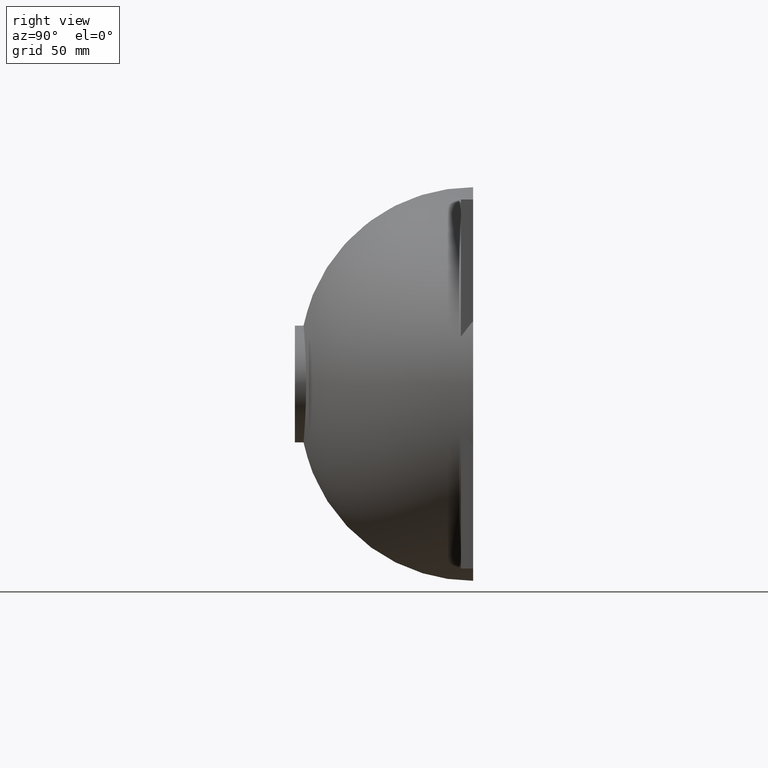
[diagram: clean part render]
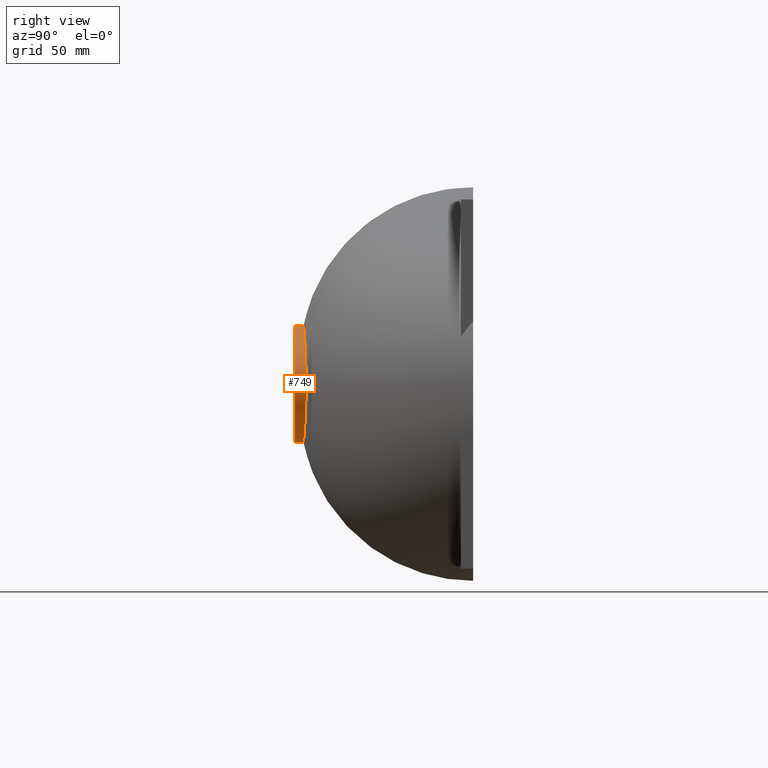
[diagram: same view with one face highlighted and labeled with its STEP entity id]
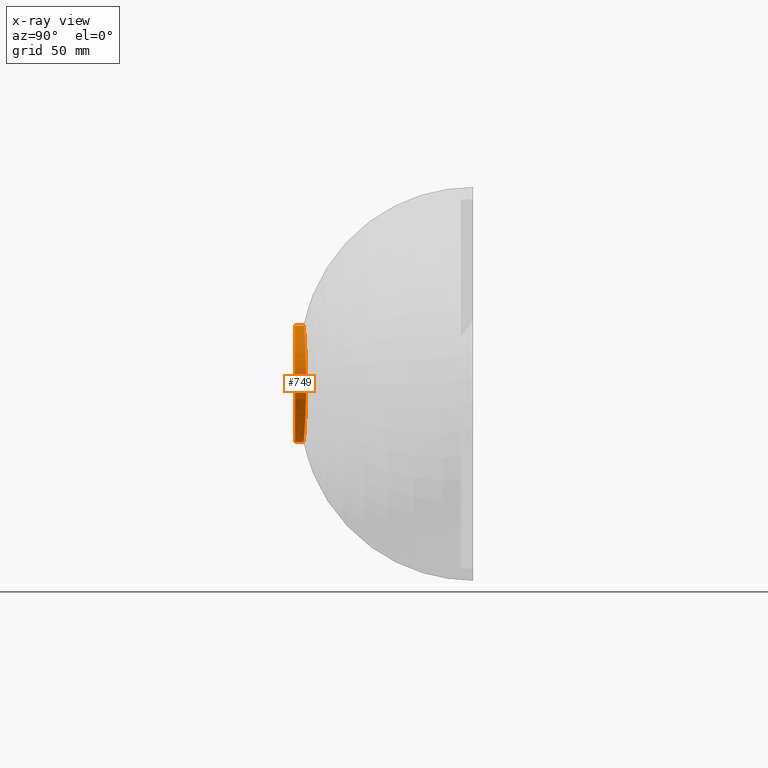
[diagram: x-ray of the same camera — body ghosted, the highlighted face saturated]
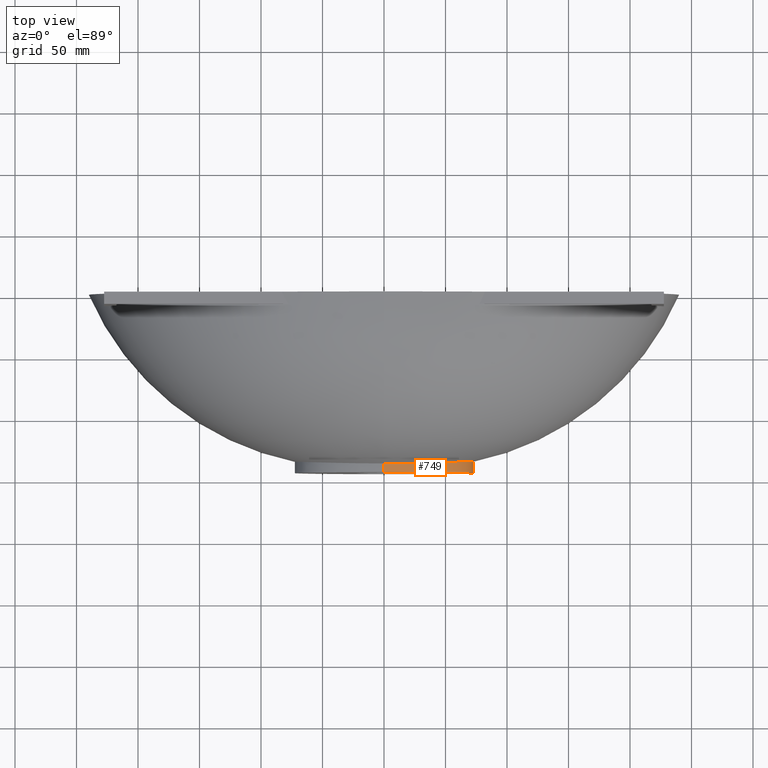
[diagram: same view with one face highlighted and labeled with its STEP entity id]
A machine part, right view. The second image highlights one B-rep face of the part: STEP entity #749.
The next image is the same camera in x-ray: the body ghosted, the highlighted face saturated — about 0% of this face is hidden behind the body in this view.
A second angle (top view) of the same face is appended — the face is thin or edge-on in the first view.
In plain terms, the highlighted face is a freeform B-spline surface patch.
Its self-contained STEP definition (entity closure, byte-faithful):
#4 = CARTESIAN_POINT ( 'NONE',  ( -73.39954372594070300, -140.3770763210705500, -7.632783294297951200E-014 ) ) ;
#6 = CARTESIAN_POINT ( 'NONE',  ( 70.71646170037875800, -135.9296180062940500, 12.54573128902395500 ) ) ;
#15 = CARTESIAN_POINT ( 'NONE',  ( 63.29308789441712000, -136.3390371893264300, -24.08068631025928100 ) ) ;
#23 = CARTESIAN_POINT ( 'NONE',  ( 51.48271120768069400, -144.9999999999999700, 33.88317743634836200 ) ) ;
#29 = CARTESIAN_POINT ( 'NONE',  ( 0.9467311187589879700, -141.4591127333577600, 47.50000000000009900 ) ) ;
#31 = B_SPLINE_CURVE_WITH_KNOTS ( 'NONE', 3,
 ( #2628, #146, #1293, #2300, #930, #2210, #1587 ),
 .UNSPECIFIED., .F., .F.,
 ( 4, 1, 1, 1, 4 ),
 ( 0.1421692620891572600, 0.1501776100742818200, 0.1581859580594063800, 0.1661943060445309500, 0.1742026540296555400 ),
 .UNSPECIFIED. ) ;
#51 = CARTESIAN_POINT ( 'NONE',  ( 73.40731830207148800, -144.9999999999998900, 7.285838599102589800E-014 ) ) ;
#73 = CARTESIAN_POINT ( 'NONE',  ( -2.087443542858357600E-010, -145.0000000000000300, -47.50000000000002100 ) ) ;
#74 = CARTESIAN_POINT ( 'NONE',  ( -36.45796759432776200, -139.2938720306895000, 41.53167056166675800 ) ) ;
#85 = CARTESIAN_POINT ( 'NONE',  ( -51.51907901183381000, -142.9663583204456100, -33.90611497006282300 ) ) ;
#87 = CARTESIAN_POINT ( 'NONE',  ( 70.69313797199795600, -142.7324045015733700, 12.50389735218298300 ) ) ;
#88 = CARTESIAN_POINT ( 'NONE',  ( 2.204686036202594000, -144.4097059010894400, 47.48248859226948300 ) ) ;
#91 = CARTESIAN_POINT ( 'NONE',  ( -6.072226055309215600E-011, -141.4883569607169700, -48.07953059758087000 ) ) ;
#96 = VERTEX_POINT ( 'NONE', #73 ) ;
#103 = CARTESIAN_POINT ( 'NONE',  ( -5.551115123125782700E-014, -137.9182254667157400, 47.50000000000003600 ) ) ;
#107 = CARTESIAN_POINT ( 'NONE',  ( -4.857225732735059900E-014, -143.2295563666789300, 47.49999999999997200 ) ) ;
#146 = CARTESIAN_POINT ( 'NONE',  ( -2.198627850836425400E-010, -144.4098521222263400, -47.50000000000000700 ) ) ;
#189 = B_SPLINE_CURVE_WITH_KNOTS ( 'NONE', 3,
 ( #2166, #2022, #3018, #2950, #2439, #652, #2576, #1351, #3033, #1553, #23, #2394, #1523, #2733, #1098, #1741, #2506 ),
 .UNSPECIFIED., .F., .F.,
 ( 4, 1, 1, 1, 1, 1, 1, 1, 1, 1, 1, 1, 1, 1, 4 ),
 ( 0.5000000000000294200, 0.5416666666657916600, 0.5833333333325377800, 0.6249999999992841300, 0.6666666666660303600, 0.7083333333327763700, 0.7499999999995226000, 0.7916666666662688400, 0.8333333333330151800, 0.8749999999997613000, 0.9166666666665075300, 0.9583333333332537700, 0.9916666666666508200, 0.9937499999999881400, 1.000000000000000000 ),
 .UNSPECIFIED. ) ;
#202 = CARTESIAN_POINT ( 'NONE',  ( -73.39306491250100400, -136.5246399219622000, -5.551115123125782700E-014 ) ) ;
#204 = CARTESIAN_POINT ( 'NONE',  ( 8.533377765990390900, -137.8965847384696700, 47.28353109660998400 ) ) ;
#231 = EDGE_CURVE ( 'NONE', #1082, #1938, #1265, .T. ) ;
#233 = CARTESIAN_POINT ( 'NONE',  ( -8.513371124650657200, -141.4482923692350500, 47.28172208801964900 ) ) ;
#234 = CARTESIAN_POINT ( 'NONE',  ( 63.18233500956482400, -144.9999999999999400, -24.00553325784789700 ) ) ;
#241 = CARTESIAN_POINT ( 'NONE',  ( -0.9456117139557893600, -143.2295563666789600, 47.49999999999995700 ) ) ;
#250 = CARTESIAN_POINT ( 'NONE',  ( -8.533377765990168800, -137.8965847384702400, 47.28353109660992000 ) ) ;
#254 = CARTESIAN_POINT ( 'NONE',  ( -63.19156441666257300, -144.2782530991103200, 24.01179601221269900 ) ) ;
#269 = CARTESIAN_POINT ( 'NONE',  ( 2.206427332563321000, -143.2291177032685100, 47.48253878819069500 ) ) ;
#293 = CARTESIAN_POINT ( 'NONE',  ( 20.14667061445589300, -137.7739539450767000, 46.03087510159115700 ) ) ;
#298 = ORIENTED_EDGE ( 'NONE', *, *, #231, .F. ) ;
#336 = ORIENTED_EDGE ( 'NONE', *, *, #411, .T. ) ;
#340 = CARTESIAN_POINT ( 'NONE',  ( -8.530043325766929000, -138.4885360102644300, 47.28322959517819200 ) ) ;
#398 = CARTESIAN_POINT ( 'NONE',  ( -0.9478505235624434800, -139.6886691000368000, 47.49999999999990100 ) ) ;
#408 = CARTESIAN_POINT ( 'NONE',  ( -51.61605982271164100, -137.5433138416397900, 33.96728172664516900 ) ) ;
#411 = EDGE_CURVE ( 'NONE', #96, #441, #31, .T. ) ;
#441 = VERTEX_POINT ( 'NONE', #2267 ) ;
#446 = CARTESIAN_POINT ( 'NONE',  ( -2.214263166186683400, -137.9164708130742600, 47.48276466983633500 ) ) ;
#451 = CARTESIAN_POINT ( 'NONE',  ( -36.37660311407527300, -144.3659857811877000, 41.48429958840375100 ) ) ;
#465 = CARTESIAN_POINT ( 'NONE',  ( -63.21002323080296700, -142.8347592973311500, 24.02432152094836200 ) ) ;
#488 = CARTESIAN_POINT ( 'NONE',  ( 0.9485967934311987400, -138.5083733444894300, 47.50000000000001400 ) ) ;
#490 = CARTESIAN_POINT ( 'NONE',  ( -4.857225732735059900E-014, -144.4098521222262300, 47.49999999999998600 ) ) ;
#501 = CARTESIAN_POINT ( 'NONE',  ( 20.14667061445589300, -137.7739539450767000, 46.03087510159115700 ) ) ;
#516 = CARTESIAN_POINT ( 'NONE',  ( -70.70091254810745300, -140.4648090031483900, 12.51784199779583100 ) ) ;
#519 = CARTESIAN_POINT ( 'NONE',  ( 73.39176914981484900, -135.7541526421403000, 1.387778780781445700E-014 ) ) ;
#529 = CARTESIAN_POINT ( 'NONE',  ( -73.40343101400465300, -142.6885381605351000, -9.020562075079396900E-014 ) ) ;
#530 = CARTESIAN_POINT ( 'NONE',  ( -70.68795492122586700, -144.2441348338580000, 12.49460092177255500 ) ) ;
#559 = CARTESIAN_POINT ( 'NONE',  ( 8.533377765990390900, -137.8965847384696700, 47.28353109660998400 ) ) ;
#581 = CARTESIAN_POINT ( 'NONE',  ( -5.551115123125782700E-014, -139.6886691000367800, 47.49999999999991500 ) ) ;
#602 = CARTESIAN_POINT ( 'NONE',  ( 20.13902739167764000, -138.3761244496536700, 46.02891869259742200 ) ) ;
#608 = CARTESIAN_POINT ( 'NONE',  ( 36.42745591424295500, -141.1959146871251400, 41.51390644669411500 ) ) ;
#625 = CARTESIAN_POINT ( 'NONE',  ( 63.29308789441712000, -136.3390371893264300, -24.08068631025928100 ) ) ;
#640 = CARTESIAN_POINT ( 'NONE',  ( 0.9489699283656422000, -137.9182254667157100, 47.50000000000004300 ) ) ;
#652 = CARTESIAN_POINT ( 'NONE',  ( 63.18233500956482400, -144.9999999999999400, -24.00553325784789700 ) ) ;
#661 = CARTESIAN_POINT ( 'NONE',  ( -20.06259516389136300, -144.3978294954231400, 46.00935460265935000 ) ) ;
#685 = CARTESIAN_POINT ( 'NONE',  ( -63.28385848739952000, -137.0607840902095500, -24.07442355589091000 ) ) ;
#690 = CARTESIAN_POINT ( 'NONE',  ( -36.47830871439092000, -138.0258435930650500, 41.54351330498258900 ) ) ;
#694 = CARTESIAN_POINT ( 'NONE',  ( -18.93462237523857500, -141.4006242786392100, -46.34093880483933200 ) ) ;
#703 = CARTESIAN_POINT ( 'NONE',  ( -0.9485967934313305200, -138.5083733444895100, 47.50000000000000700 ) ) ;
#707 = CARTESIAN_POINT ( 'NONE',  ( -51.59181462002982200, -138.8990749613365900, -33.95199003749932100 ) ) ;
#713 = CARTESIAN_POINT ( 'NONE',  ( -1.954352958374126900E-010, -137.9182254667158000, -47.49999999999994300 ) ) ;
#718 = CARTESIAN_POINT ( 'NONE',  ( -51.61605982276190500, -137.5433138416338500, -33.96728172664483500 ) ) ;
#733 = CARTESIAN_POINT ( 'NONE',  ( 18.88984618297710600, -145.0000000000000000, -46.33089962058677000 ) ) ;
#742 = CARTESIAN_POINT ( 'NONE',  ( 70.70868712425188100, -138.1972135047202500, 12.53178664341028700 ) ) ;
#743 = CARTESIAN_POINT ( 'NONE',  ( 2.209039277104405000, -141.4582354065369700, 47.48261408207268600 ) ) ;
#749 = ADVANCED_FACE ( 'NONE', ( #2463 ), #1869, .T. ) ;
#752 = CARTESIAN_POINT ( 'NONE',  ( 63.21002323077797100, -142.8347592973315200, -24.02432152095075700 ) ) ;
#775 = CARTESIAN_POINT ( 'NONE',  ( 0.9478505235623185800, -139.6886691000367500, 47.49999999999992200 ) ) ;
#798 = CARTESIAN_POINT ( 'NONE',  ( 36.42745591416584700, -141.1959146871283800, -41.51390644669531600 ) ) ;
#800 = CARTESIAN_POINT ( 'NONE',  ( 20.07788160945139900, -143.1934884862692200, 46.01326742064758000 ) ) ;
#809 = CARTESIAN_POINT ( 'NONE',  ( -4.680977827575816300E-011, -137.9767139214340500, -48.07451100545617400 ) ) ;
#814 = CARTESIAN_POINT ( 'NONE',  ( 36.45796759426822600, -139.2938720306924300, -41.53167056166815000 ) ) ;
#821 = CARTESIAN_POINT ( 'NONE',  ( -20.10081127778333300, -141.3869769725390000, 46.01913664762838600 ) ) ;
#826 = CARTESIAN_POINT ( 'NONE',  ( -36.48847927442247400, -137.3918293742527500, 41.54943467664048000 ) ) ;
#832 = CARTESIAN_POINT ( 'NONE',  ( -18.88984618311877000, -145.0000000000000300, -46.33089962059092700 ) ) ;
#836 = CARTESIAN_POINT ( 'NONE',  ( -6.768197113871110600E-011, -143.2441784803585800, -48.08204039364329000 ) ) ;
#842 = CARTESIAN_POINT ( 'NONE',  ( 36.48847927443004100, -137.3918293742502500, 41.54943467664070100 ) ) ;
#863 = CARTESIAN_POINT ( 'NONE',  ( 70.68536339587095100, -144.9999999999999400, 12.48995270656932300 ) ) ;
#875 = CARTESIAN_POINT ( 'NONE',  ( 8.530043325767163500, -138.4885360102638900, 47.28322959517826300 ) ) ;
#876 = CARTESIAN_POINT ( 'NONE',  ( -51.49483380910173500, -144.3221194401485000, -33.89082328091728200 ) ) ;
#895 = CARTESIAN_POINT ( 'NONE',  ( -51.48271120773571900, -145.0000000000000000, -33.88317743634453900 ) ) ;
#905 = CARTESIAN_POINT ( 'NONE',  ( -4.857225732735059900E-014, -144.4098521222262300, 47.49999999999998600 ) ) ;
#912 = CARTESIAN_POINT ( 'NONE',  ( -18.97193586867175300, -138.4011445108387500, -46.34930479171308800 ) ) ;
#924 = CARTESIAN_POINT ( 'NONE',  ( -8.503367803980893300, -143.2241461846175500, 47.28081758372436400 ) ) ;
#929 = CARTESIAN_POINT ( 'NONE',  ( -63.29308789443452100, -136.3390371893246100, 24.08068631025891200 ) ) ;
#930 = CARTESIAN_POINT ( 'NONE',  ( -2.020886647417318000E-010, -139.6886691000368300, -47.50000000000002100 ) ) ;
#941 = CARTESIAN_POINT ( 'NONE',  ( -36.45796759439596000, -139.2938720306846400, -41.53167056166604000 ) ) ;
#950 = CARTESIAN_POINT ( 'NONE',  ( -36.42745591431010900, -141.1959146871231800, -41.51390644669185500 ) ) ;
#951 = CARTESIAN_POINT ( 'NONE',  ( 51.55544681588703800, -140.9327166408929200, 33.92905250378325400 ) ) ;
#964 = CARTESIAN_POINT ( 'NONE',  ( -73.39565643787682300, -138.0656144816051700, -5.724587470723463400E-014 ) ) ;
#973 = CARTESIAN_POINT ( 'NONE',  ( 18.89730888166814200, -144.4001040464400200, -46.33257281796180400 ) ) ;
#1005 = CARTESIAN_POINT ( 'NONE',  ( -36.48847927448184700, -137.3918293742463000, -41.54943467664013900 ) ) ;
#1011 = CARTESIAN_POINT ( 'NONE',  ( -51.49483380902772500, -144.3221194401490400, 33.89082328091900100 ) ) ;
#1014 = CARTESIAN_POINT ( 'NONE',  ( 51.49483380904842300, -144.3221194401487500, 33.89082328092083400 ) ) ;
#1060 = CARTESIAN_POINT ( 'NONE',  ( -8.493364483311131300, -144.9999999999999400, 47.27991307942922800 ) ) ;
#1081 = CARTESIAN_POINT ( 'NONE',  ( -2.213392518006319900, -138.5067649119847600, 47.48273957187569700 ) ) ;
#1082 = VERTEX_POINT ( 'NONE', #3003 ) ;
#1098 = CARTESIAN_POINT ( 'NONE',  ( 2.203815388022230400, -144.9999999999999700, 47.48246349430888100 ) ) ;
#1102 = CARTESIAN_POINT ( 'NONE',  ( -63.28385848736435500, -137.0607840902142100, 24.07442355589106600 ) ) ;
#1123 = CARTESIAN_POINT ( 'NONE',  ( -36.37660311416704700, -144.3659857811871600, -41.48429958840162600 ) ) ;
#1134 = CARTESIAN_POINT ( 'NONE',  ( -0.9489699283657671000, -137.9182254667157700, 47.50000000000002800 ) ) ;
#1154 = CARTESIAN_POINT ( 'NONE',  ( -70.71387017498914000, -136.6854831724383200, 12.54108307381908500 ) ) ;
#1168 = CARTESIAN_POINT ( 'NONE',  ( 18.97939856726951600, -137.8012485572799900, -46.35097798908721200 ) ) ;
#1196 = CARTESIAN_POINT ( 'NONE',  ( 73.40602253938344300, -144.2295127201782600, 6.591949208711867000E-014 ) ) ;
#1203 = CARTESIAN_POINT ( 'NONE',  ( -18.91223427917869400, -143.2003121393197200, -46.33591921271518300 ) ) ;
#1223 = CARTESIAN_POINT ( 'NONE',  ( -51.62818242412792100, -136.8654332817823700, -33.97492757121755600 ) ) ;
#1231 = CARTESIAN_POINT ( 'NONE',  ( 18.97939856713168500, -137.8012485572832000, -46.35097798912501300 ) ) ;
#1236 = CARTESIAN_POINT ( 'NONE',  ( 2.211651221645495500, -139.6873531098055400, 47.48268937595437900 ) ) ;
#1265 = B_SPLINE_CURVE_WITH_KNOTS ( 'NONE', 3,
 ( #2620, #490, #107, #2042, #1297, #2652, #2000 ),
 .UNSPECIFIED., .F., .F.,
 ( 4, 1, 1, 1, 4 ),
 ( 0.1421692620891572600, 0.1501776100742818200, 0.1581859580594063800, 0.1661943060445309500, 0.1742026540296555400 ),
 .UNSPECIFIED. ) ;
#1271 = CARTESIAN_POINT ( 'NONE',  ( 51.61605982267535400, -137.5433138416427100, -33.96728172664594300 ) ) ;
#1290 = CARTESIAN_POINT ( 'NONE',  ( 70.71387017500320800, -136.6854831724362200, 12.54108307381940400 ) ) ;
#1293 = CARTESIAN_POINT ( 'NONE',  ( -2.154192549981650100E-010, -143.2295563666789900, -47.50000000000005000 ) ) ;
#1297 = CARTESIAN_POINT ( 'NONE',  ( -5.551115123125782700E-014, -139.6886691000367800, 47.49999999999991500 ) ) ;
#1351 = CARTESIAN_POINT ( 'NONE',  ( 73.40731830207148800, -144.9999999999998900, 7.285838599102589800E-014 ) ) ;
#1371 = CARTESIAN_POINT ( 'NONE',  ( -73.40602253938050100, -144.2295127201783800, -1.006139616066548100E-013 ) ) ;
#1378 = CARTESIAN_POINT ( 'NONE',  ( -5.551115123125782700E-014, -137.9182254667157400, 47.50000000000003600 ) ) ;
#1381 = CARTESIAN_POINT ( 'NONE',  ( -2.209039277104495100, -141.4582354065370300, 47.48261408207262200 ) ) ;
#1392 = CARTESIAN_POINT ( 'NONE',  ( -2.203815388022299700, -144.9999999999999700, 47.48246349430878200 ) ) ;
#1404 = CARTESIAN_POINT ( 'NONE',  ( -73.40731830206841800, -145.0000000000000300, -1.075528555105620400E-013 ) ) ;
#1408 = CARTESIAN_POINT ( 'NONE',  ( 70.68795492124661500, -144.2441348338577400, 12.49460092177387300 ) ) ;
#1417 = CARTESIAN_POINT ( 'NONE',  ( 2.214263166186586100, -137.9164708130741100, 47.48276466983634900 ) ) ;
#1436 = CARTESIAN_POINT ( 'NONE',  ( 20.12374094612105700, -139.5804654588074500, 46.02500587460988900 ) ) ;
#1439 = CARTESIAN_POINT ( 'NONE',  ( 51.61605982272568800, -137.5433138416368300, 33.96728172664558800 ) ) ;
#1479 = CARTESIAN_POINT ( 'NONE',  ( 70.71387017498507500, -136.6854831724386900, -12.54108307381944500 ) ) ;
#1481 = CARTESIAN_POINT ( 'NONE',  ( -20.07788160944817700, -143.1934884862695300, 46.01326742064690500 ) ) ;
#1485 = CARTESIAN_POINT ( 'NONE',  ( -63.23771145205690700, -140.6695185946599300, -24.04310978405131700 ) ) ;
#1493 = CARTESIAN_POINT ( 'NONE',  ( 63.23771145203456700, -140.6695185946608700, 24.04310978405302300 ) ) ;
#1494 = CARTESIAN_POINT ( 'NONE',  ( -5.551115123125782700E-014, -138.5083733444894600, 47.50000000000001400 ) ) ;
#1497 = CARTESIAN_POINT ( 'NONE',  ( -51.55544681593180200, -140.9327166408912700, -33.92905250378104400 ) ) ;
#1499 = CARTESIAN_POINT ( 'NONE',  ( 63.23771145199101800, -140.6695185946634000, -24.04310978405358800 ) ) ;
#1511 = CARTESIAN_POINT ( 'NONE',  ( 6.326466188909227700, -137.9182254667174400, -47.50000000001342900 ) ) ;
#1523 = CARTESIAN_POINT ( 'NONE',  ( 20.05495194111654600, -145.0000000000000000, 46.00739819366644700 ) ) ;
#1535 = CARTESIAN_POINT ( 'NONE',  ( -51.55544681586965800, -140.9327166408944500, 33.92905250378213800 ) ) ;
#1539 = CARTESIAN_POINT ( 'NONE',  ( -70.70868712423644800, -138.1972135047220100, 12.53178664340977400 ) ) ;
#1542 = CARTESIAN_POINT ( 'NONE',  ( -36.47830871445323500, -138.0258435930591400, -41.54351330498214900 ) ) ;
#1546 = CARTESIAN_POINT ( 'NONE',  ( -63.21002323085145500, -142.8347592973299000, -24.02432152094758400 ) ) ;
#1553 = CARTESIAN_POINT ( 'NONE',  ( 63.18233500961837000, -144.9999999999999700, 24.00553325784681700 ) ) ;
#1555 = CARTESIAN_POINT ( 'NONE',  ( -70.69313797197857200, -142.7324045015740800, 12.50389735218186100 ) ) ;
#1558 = CARTESIAN_POINT ( 'NONE',  ( 51.59181461999021700, -138.8990749613390100, 33.95199003750057900 ) ) ;
#1582 = CARTESIAN_POINT ( 'NONE',  ( 63.19156441663587000, -144.2782530991104900, -24.01179601221551600 ) ) ;
#1587 = CARTESIAN_POINT ( 'NONE',  ( -1.954352958374126900E-010, -137.9182254667158000, -47.49999999999994300 ) ) ;
#1600 = CARTESIAN_POINT ( 'NONE',  ( -5.551115123125782700E-014, -141.4591127333577600, 47.50000000000008500 ) ) ;
#1620 = CARTESIAN_POINT ( 'NONE',  ( -20.14667061445371500, -137.7739539450780900, 46.03087510159104300 ) ) ;
#1639 = CARTESIAN_POINT ( 'NONE',  ( -4.857225732735059900E-014, -144.4098521222262300, 47.49999999999998600 ) ) ;
#1645 = CARTESIAN_POINT ( 'NONE',  ( -51.62818242408003000, -136.8654332817888500, 33.97492757121779100 ) ) ;
#1661 = CARTESIAN_POINT ( 'NONE',  ( 51.62818242404537700, -136.8654332817920600, -33.97492757121823100 ) ) ;
#1669 = CARTESIAN_POINT ( 'NONE',  ( 18.95701047119642600, -139.6009364179599300, -46.34595839696215300 ) ) ;
#1670 = CARTESIAN_POINT ( 'NONE',  ( 70.70091254812490400, -140.4648090031472800, 12.51784199779665300 ) ) ;
#1673 = CARTESIAN_POINT ( 'NONE',  ( -4.857225732735059900E-014, -144.9999999999999700, 47.50000000000000000 ) ) ;
#1682 = CARTESIAN_POINT ( 'NONE',  ( 36.47830871439889200, -138.0258435930627500, 41.54351330498290900 ) ) ;
#1688 = CARTESIAN_POINT ( 'NONE',  ( -70.71646170038270900, -135.9296180062935900, -12.54573128902377000 ) ) ;
#1692 = ORIENTED_EDGE ( 'NONE', *, *, #1765, .T. ) ;
#1705 = CARTESIAN_POINT ( 'NONE',  ( 51.51907901178390100, -142.9663583204463500, 33.90611497006576500 ) ) ;
#1716 = CARTESIAN_POINT ( 'NONE',  ( 63.19156441668774700, -144.2782530991100900, 24.01179601221451100 ) ) ;
#1733 = CARTESIAN_POINT ( 'NONE',  ( 36.36643255405586900, -145.0000000000000000, 41.47837821674741600 ) ) ;
#1734 = CARTESIAN_POINT ( 'NONE',  ( 51.48271120760424000, -144.9999999999999400, -33.88317743635025200 ) ) ;
#1738 = CARTESIAN_POINT ( 'NONE',  ( 51.59181461993512100, -138.8990749613438700, -33.95199003750125400 ) ) ;
#1741 = CARTESIAN_POINT ( 'NONE',  ( 0.9444923091523477200, -144.9999999999999700, 47.50000000000002100 ) ) ;
#1757 = CARTESIAN_POINT ( 'NONE',  ( 73.39565643787906900, -138.0656144816049100, 3.295974604355933500E-014 ) ) ;
#1765 = EDGE_CURVE ( 'NONE', #441, #1938, #2999, .T. ) ;
#1776 = CARTESIAN_POINT ( 'NONE',  ( -36.42745591423307900, -141.1959146871263600, 41.51390644669324100 ) ) ;
#1781 = CARTESIAN_POINT ( 'NONE',  ( 51.51907901171457400, -142.9663583204479700, -33.90611497006727100 ) ) ;
#1794 = CARTESIAN_POINT ( 'NONE',  ( -8.523374445320405000, -139.6724385538526600, 47.28262659231464900 ) ) ;
#1807 = CARTESIAN_POINT ( 'NONE',  ( 70.70091254810248000, -140.4648090031486200, -12.51784199779677200 ) ) ;
#1821 = CARTESIAN_POINT ( 'NONE',  ( -20.05495194111296800, -144.9999999999999700, 46.00739819366558700 ) ) ;
#1827 = CARTESIAN_POINT ( 'NONE',  ( 36.37660311408705400, -144.3659857811875000, 41.48429958840518600 ) ) ;
#1852 = CARTESIAN_POINT ( 'NONE',  ( -51.59181461997480500, -138.8990749613415100, 33.95199003749989700 ) ) ;
#1855 = CARTESIAN_POINT ( 'NONE',  ( 36.48847927437057600, -137.3918293742567300, -41.54943467664090000 ) ) ;
#1858 = CARTESIAN_POINT ( 'NONE',  ( -18.95701047129846700, -139.6009364179589100, -46.34595839696361000 ) ) ;
#1869 = B_SPLINE_SURFACE_WITH_KNOTS ( 'NONE', 3, 3, ( 
 ( #1673, #2981, #1392, #1060, #1821, #1915, #2860, #2814, #2066, #1404, #1945, #2527, #895, #2383, #832, #2254, #733, #3113, #1734, #234, #2756, #51, #863, #2955, #1996, #1733, #2410, #2564, #2937, #2458, #3088 ),
 ( #1639, #2714, #2335, #2545, #661, #451, #1011, #254, #530, #1371, #2031, #2173, #876, #1123, #2141, #2514, #973, #2381, #2183, #1582, #2349, #1196, #1408, #1716, #1014, #1827, #2131, #1883, #88, #2604, #905 ),
 ( #2494, #241, #2164, #924, #1481, #3131, #2541, #465, #1555, #529, #2692, #1546, #85, #1886, #1203, #836, #2112, #2623, #1781, #752, #2598, #2319, #87, #2230, #1705, #2640, #800, #2889, #269, #2491, #2583 ),
 ( #1600, #2374, #1381, #233, #821, #1776, #1535, #1985, #516, #4, #2686, #1485, #1497, #950, #694, #91, #2770, #798, #2903, #1499, #1807, #2390, #1670, #1493, #951, #608, #2975, #2734, #743, #29, #1907 ),
 ( #2850, #398, #2694, #1794, #3044, #74, #1852, #2161, #1539, #964, #2709, #2219, #707, #941, #1858, #2959, #1669, #814, #1738, #2596, #3133, #1757, #742, #2303, #1558, #1976, #1436, #3001, #1236, #775, #581 ),
 ( #1494, #703, #1081, #340, #2140, #690, #408, #1102, #1154, #202, #2191, #685, #718, #1542, #912, #2024, #2432, #2448, #1271, #2865, #1479, #2775, #1290, #2857, #1439, #1682, #602, #875, #2838, #488, #1981 ),
 ( #3144, #1134, #446, #250, #1620, #826, #1645, #929, #2559, #2513, #1688, #2961, #1223, #1005, #2124, #809, #1168, #2435, #1661, #15, #2957, #519, #6, #2553, #2936, #842, #293, #559, #1417, #640, #1378 ) ),
 .UNSPECIFIED., .F., .T., .F.,
 ( 4, 1, 1, 1, 4 ),
 ( 4, 1, 1, 1, 1, 1, 1, 1, 1, 1, 1, 1, 1, 1, 1, 1, 1, 1, 1, 1, 1, 1, 1, 1, 1, 1, 1, 1, 4 ),
 ( 0.1421692620891572600, 0.1501776100742818200, 0.1581859580594063800, 0.1661943060445309500, 0.1742026540296555400 ),
 ( 0.0000000000000000000, 0.006250000000000088800, 0.008333333333333303700, 0.04166666666666663000, 0.08333333333333337000, 0.1249999999999998900, 0.1666666666666666300, 0.2083333333333333700, 0.2499999999999998300, 0.2916666666666666300, 0.3333333333333333700, 0.3750000000000001100, 0.4166666666666666300, 0.4583333333333333700, 0.5000000000009839900, 0.5416666666666667400, 0.5833333333333332600, 0.6250000000000000000, 0.6666666666666667400, 0.7083333333333332600, 0.7499999999999998900, 0.7916666666666666300, 0.8333333333333333700, 0.8750000000000000000, 0.9166666666666666300, 0.9583333333333333700, 0.9916666666666667000, 0.9937500000000000200, 1.000000000000000000 ),
 .UNSPECIFIED. ) ;
#1883 = CARTESIAN_POINT ( 'NONE',  ( 8.496698923534808000, -144.4080487282057600, 47.28021458086127600 ) ) ;
#1886 = CARTESIAN_POINT ( 'NONE',  ( -36.39694423422429300, -143.0979573435616300, -41.49614233171775600 ) ) ;
#1907 = CARTESIAN_POINT ( 'NONE',  ( -5.551115123125782700E-014, -141.4591127333577600, 47.50000000000008500 ) ) ;
#1915 = CARTESIAN_POINT ( 'NONE',  ( -36.36643255404370500, -144.9999999999999700, 41.47837821674588100 ) ) ;
#1938 = VERTEX_POINT ( 'NONE', #2966 ) ;
#1945 = CARTESIAN_POINT ( 'NONE',  ( -70.68536339587706200, -145.0000000000000300, -12.48995270656770300 ) ) ;
#1976 = CARTESIAN_POINT ( 'NONE',  ( 36.45796759433650900, -139.2938720306875700, 41.53167056166729100 ) ) ;
#1981 = CARTESIAN_POINT ( 'NONE',  ( -5.551115123125782700E-014, -138.5083733444894600, 47.50000000000001400 ) ) ;
#1985 = CARTESIAN_POINT ( 'NONE',  ( -63.23771145201341400, -140.6695185946624300, 24.04310978405191400 ) ) ;
#1996 = CARTESIAN_POINT ( 'NONE',  ( 51.48271120768069400, -144.9999999999999700, 33.88317743634836200 ) ) ;
#2000 = CARTESIAN_POINT ( 'NONE',  ( -5.551115123125782700E-014, -137.9182254667157400, 47.50000000000003600 ) ) ;
#2007 = CARTESIAN_POINT ( 'NONE',  ( 2.214263166186586100, -137.9164708130741100, 47.48276466983634900 ) ) ;
#2008 = ORIENTED_EDGE ( 'NONE', *, *, #2479, .F. ) ;
#2022 = CARTESIAN_POINT ( 'NONE',  ( 6.296615394136133600, -145.0000000000000300, -47.50000000001230700 ) ) ;
#2024 = CARTESIAN_POINT ( 'NONE',  ( -4.912736883966317700E-011, -138.5619877613145800, -48.07534760414368700 ) ) ;
#2031 = CARTESIAN_POINT ( 'NONE',  ( -70.68795492125251200, -144.2441348338577700, -12.49460092177237200 ) ) ;
#2042 = CARTESIAN_POINT ( 'NONE',  ( -5.551115123125782700E-014, -141.4591127333577600, 47.50000000000008500 ) ) ;
#2066 = CARTESIAN_POINT ( 'NONE',  ( -70.68536339584954900, -145.0000000000000300, 12.48995270656790000 ) ) ;
#2068 = CARTESIAN_POINT ( 'NONE',  ( 73.39176914981484900, -135.7541526421403000, 1.387778780781445700E-014 ) ) ;
#2112 = CARTESIAN_POINT ( 'NONE',  ( 18.91223427905022800, -143.2003121393200300, -46.33591921271193600 ) ) ;
#2124 = CARTESIAN_POINT ( 'NONE',  ( -18.97939856735839100, -137.8012485572785700, -46.35097798908776700 ) ) ;
#2131 = CARTESIAN_POINT ( 'NONE',  ( 20.06259516389483000, -144.3978294954230300, 46.00935460266016700 ) ) ;
#2140 = CARTESIAN_POINT ( 'NONE',  ( -20.13902739167532000, -138.3761244496549800, 46.02891869259724400 ) ) ;
#2141 = CARTESIAN_POINT ( 'NONE',  ( -18.89730888180540800, -144.4001040464398800, -46.33257281796566200 ) ) ;
#2161 = CARTESIAN_POINT ( 'NONE',  ( -63.26539967322393200, -138.5042778919932700, 24.06189804715536700 ) ) ;
#2164 = CARTESIAN_POINT ( 'NONE',  ( -2.206427332563397400, -143.2291177032685700, 47.48253878819063100 ) ) ;
#2166 = CARTESIAN_POINT ( 'NONE',  ( -2.087443542858357600E-010, -145.0000000000000300, -47.50000000000002100 ) ) ;
#2173 = CARTESIAN_POINT ( 'NONE',  ( -63.19156441671437800, -144.2782530991099700, -24.01179601221174000 ) ) ;
#2183 = CARTESIAN_POINT ( 'NONE',  ( 51.49483380897433400, -144.3221194401492900, -33.89082328092258900 ) ) ;
#2191 = CARTESIAN_POINT ( 'NONE',  ( -70.71387017500724400, -136.6854831724358200, -12.54108307381910600 ) ) ;
#2206 = CARTESIAN_POINT ( 'NONE',  ( 36.48847927443004100, -137.3918293742502500, 41.54943467664070100 ) ) ;
#2210 = CARTESIAN_POINT ( 'NONE',  ( -1.976503388266821400E-010, -138.5083733444895100, -47.50000000000001400 ) ) ;
#2219 = CARTESIAN_POINT ( 'NONE',  ( -63.26539967326244400, -138.5042778919894300, -24.06189804715506500 ) ) ;
#2230 = CARTESIAN_POINT ( 'NONE',  ( 63.21002323082650100, -142.8347592973302400, 24.02432152094989700 ) ) ;
#2254 = CARTESIAN_POINT ( 'NONE',  ( -7.464168172433005600E-011, -145.0000000000000300, -48.08455018970560200 ) ) ;
#2267 = CARTESIAN_POINT ( 'NONE',  ( -1.954352958374126900E-010, -137.9182254667158000, -47.49999999999994300 ) ) ;
#2300 = CARTESIAN_POINT ( 'NONE',  ( -2.087537430295138500E-010, -141.4591127333578400, -47.49999999999996400 ) ) ;
#2303 = CARTESIAN_POINT ( 'NONE',  ( 63.26539967324268300, -138.5042778919907700, 24.06189804715605600 ) ) ;
#2319 = CARTESIAN_POINT ( 'NONE',  ( 73.40343101400739600, -142.6885381605349000, 6.245004513516505500E-014 ) ) ;
#2335 = CARTESIAN_POINT ( 'NONE',  ( -2.204686036202663200, -144.4097059010894700, 47.48248859226939800 ) ) ;
#2349 = CARTESIAN_POINT ( 'NONE',  ( 70.68795492121992700, -144.2441348338579700, -12.49460092177411100 ) ) ;
#2374 = CARTESIAN_POINT ( 'NONE',  ( -0.9467311187591198600, -141.4591127333577800, 47.50000000000006400 ) ) ;
#2381 = CARTESIAN_POINT ( 'NONE',  ( 36.37660311399520900, -144.3659857811881000, -41.48429958840733200 ) ) ;
#2383 = CARTESIAN_POINT ( 'NONE',  ( -36.36643255413840600, -145.0000000000000000, -41.47837821674357900 ) ) ;
#2390 = CARTESIAN_POINT ( 'NONE',  ( 73.39954372594320400, -140.3770763210703800, 4.683753385137379200E-014 ) ) ;
#2394 = CARTESIAN_POINT ( 'NONE',  ( 36.36643255405586900, -145.0000000000000000, 41.47837821674741600 ) ) ;
#2410 = CARTESIAN_POINT ( 'NONE',  ( 20.05495194111654600, -145.0000000000000000, 46.00739819366644700 ) ) ;
#2422 = CARTESIAN_POINT ( 'NONE',  ( 70.71646170036149200, -135.9296180062968100, -12.54573128902396200 ) ) ;
#2432 = CARTESIAN_POINT ( 'NONE',  ( 18.97193586857850200, -138.4011445108400300, -46.34930479171222100 ) ) ;
#2435 = CARTESIAN_POINT ( 'NONE',  ( 36.48847927437057600, -137.3918293742567300, -41.54943467664090000 ) ) ;
#2439 = CARTESIAN_POINT ( 'NONE',  ( 51.48271120760424000, -144.9999999999999400, -33.88317743635025200 ) ) ;
#2448 = CARTESIAN_POINT ( 'NONE',  ( 36.47830871433649900, -138.0258435930686600, -41.54351330498335700 ) ) ;
#2458 = CARTESIAN_POINT ( 'NONE',  ( 0.9444923091523477200, -144.9999999999999700, 47.50000000000002100 ) ) ;
#2463 = FACE_OUTER_BOUND ( 'NONE', #2765, .T. ) ;
#2479 = EDGE_CURVE ( 'NONE', #96, #1082, #189, .T. ) ;
#2491 = CARTESIAN_POINT ( 'NONE',  ( 0.9456117139556713400, -143.2295563666789300, 47.49999999999997900 ) ) ;
#2494 = CARTESIAN_POINT ( 'NONE',  ( -4.857225732735059900E-014, -143.2295563666789300, 47.49999999999997200 ) ) ;
#2506 = CARTESIAN_POINT ( 'NONE',  ( -4.857225732735059900E-014, -144.9999999999999700, 47.50000000000000000 ) ) ;
#2513 = CARTESIAN_POINT ( 'NONE',  ( -73.39176914981304400, -135.7541526421405800, -4.683753385137379200E-014 ) ) ;
#2514 = CARTESIAN_POINT ( 'NONE',  ( -7.232409116042504100E-011, -144.4147261601195600, -48.08371359101814600 ) ) ;
#2527 = CARTESIAN_POINT ( 'NONE',  ( -63.18233500964586100, -145.0000000000000300, -24.00553325784383000 ) ) ;
#2541 = CARTESIAN_POINT ( 'NONE',  ( -51.51907901176454600, -142.9663583204472000, 33.90611497006422300 ) ) ;
#2545 = CARTESIAN_POINT ( 'NONE',  ( -8.496698923534385300, -144.4080487282057800, 47.28021458086092800 ) ) ;
#2553 = CARTESIAN_POINT ( 'NONE',  ( 63.29308789445072100, -136.3390371893214000, 24.08068631025918200 ) ) ;
#2559 = CARTESIAN_POINT ( 'NONE',  ( -70.71646170036544300, -135.9296180062963800, 12.54573128902373600 ) ) ;
#2564 = CARTESIAN_POINT ( 'NONE',  ( 8.493364483311575300, -144.9999999999999700, 47.27991307942959100 ) ) ;
#2576 = CARTESIAN_POINT ( 'NONE',  ( 70.68536339584341000, -144.9999999999998900, -12.48995270656957900 ) ) ;
#2583 = CARTESIAN_POINT ( 'NONE',  ( -4.857225732735059900E-014, -143.2295563666789300, 47.49999999999997200 ) ) ;
#2594 = CARTESIAN_POINT ( 'NONE',  ( 0.9489699283656422000, -137.9182254667157100, 47.50000000000004300 ) ) ;
#2596 = CARTESIAN_POINT ( 'NONE',  ( 63.26539967320410100, -138.5042778919946000, -24.06189804715643600 ) ) ;
#2598 = CARTESIAN_POINT ( 'NONE',  ( 70.69313797197300200, -142.7324045015740500, -12.50389735218317700 ) ) ;
#2604 = CARTESIAN_POINT ( 'NONE',  ( 0.9448654440867843000, -144.4098521222262300, 47.50000000000000700 ) ) ;
#2620 = CARTESIAN_POINT ( 'NONE',  ( -4.857225732735059900E-014, -144.9999999999999700, 47.50000000000000000 ) ) ;
#2623 = CARTESIAN_POINT ( 'NONE',  ( 36.39694423406348300, -143.0979573435641900, -41.49614233172256700 ) ) ;
#2628 = CARTESIAN_POINT ( 'NONE',  ( -2.087443542858357600E-010, -145.0000000000000300, -47.50000000000002100 ) ) ;
#2640 = CARTESIAN_POINT ( 'NONE',  ( 36.39694423414943700, -143.0979573435625700, 41.49614233172069800 ) ) ;
#2652 = CARTESIAN_POINT ( 'NONE',  ( -5.551115123125782700E-014, -138.5083733444894600, 47.50000000000001400 ) ) ;
#2686 = CARTESIAN_POINT ( 'NONE',  ( -70.70091254812982100, -140.4648090031470000, -12.51784199779574000 ) ) ;
#2692 = CARTESIAN_POINT ( 'NONE',  ( -70.69313797200355500, -142.7324045015733700, -12.50389735218172200 ) ) ;
#2694 = CARTESIAN_POINT ( 'NONE',  ( -2.211651221645585700, -139.6873531098056800, 47.48268937595434400 ) ) ;
#2709 = CARTESIAN_POINT ( 'NONE',  ( -70.70868712425623000, -138.1972135047199700, -12.53178664340974700 ) ) ;
#2714 = CARTESIAN_POINT ( 'NONE',  ( -0.9448654440869022100, -144.4098521222262300, 47.49999999999995700 ) ) ;
#2733 = CARTESIAN_POINT ( 'NONE',  ( 8.493364483311575300, -144.9999999999999700, 47.27991307942959100 ) ) ;
#2734 = CARTESIAN_POINT ( 'NONE',  ( 8.513371124650982200, -141.4482923692347600, 47.28172208801985500 ) ) ;
#2756 = CARTESIAN_POINT ( 'NONE',  ( 70.68536339584341000, -144.9999999999998900, -12.48995270656957900 ) ) ;
#2765 = EDGE_LOOP ( 'NONE', ( #2008, #336, #1692, #298 ) ) ;
#2770 = CARTESIAN_POINT ( 'NONE',  ( 18.93462237512331800, -141.4006242786399500, -46.34093880483697300 ) ) ;
#2775 = CARTESIAN_POINT ( 'NONE',  ( 73.39306491250299300, -136.5246399219619200, 1.387778780781445700E-014 ) ) ;
#2803 = CARTESIAN_POINT ( 'NONE',  ( 70.71646170037875800, -135.9296180062940500, 12.54573128902395500 ) ) ;
#2814 = CARTESIAN_POINT ( 'NONE',  ( -63.18233500959238600, -145.0000000000000300, 24.00553325784486000 ) ) ;
#2834 = CARTESIAN_POINT ( 'NONE',  ( 51.62818242409334600, -136.8654332817856400, 33.97492757121806800 ) ) ;
#2838 = CARTESIAN_POINT ( 'NONE',  ( 2.213392518006222600, -138.5067649119846200, 47.48273957187571200 ) ) ;
#2850 = CARTESIAN_POINT ( 'NONE',  ( -5.551115123125782700E-014, -139.6886691000367800, 47.49999999999991500 ) ) ;
#2857 = CARTESIAN_POINT ( 'NONE',  ( 63.28385848738143700, -137.0607840902112900, 24.07442355589148200 ) ) ;
#2860 = CARTESIAN_POINT ( 'NONE',  ( -51.48271120765932100, -145.0000000000000300, 33.88317743634639400 ) ) ;
#2865 = CARTESIAN_POINT ( 'NONE',  ( 63.28385848734617300, -137.0607840902159200, -24.07442355589169100 ) ) ;
#2889 = CARTESIAN_POINT ( 'NONE',  ( 8.503367803981289400, -143.2241461846174700, 47.28081758372464800 ) ) ;
#2903 = CARTESIAN_POINT ( 'NONE',  ( 51.55544681582483700, -140.9327166408961300, -33.92905250378424900 ) ) ;
#2936 = CARTESIAN_POINT ( 'NONE',  ( 51.62818242409334600, -136.8654332817856400, 33.97492757121806800 ) ) ;
#2937 = CARTESIAN_POINT ( 'NONE',  ( 2.203815388022230400, -144.9999999999999700, 47.48246349430888100 ) ) ;
#2950 = CARTESIAN_POINT ( 'NONE',  ( 36.36643255396107600, -145.0000000000000000, -41.47837821674973200 ) ) ;
#2955 = CARTESIAN_POINT ( 'NONE',  ( 63.18233500961837000, -144.9999999999999700, 24.00553325784681700 ) ) ;
#2957 = CARTESIAN_POINT ( 'NONE',  ( 70.71646170036149200, -135.9296180062968100, -12.54573128902396200 ) ) ;
#2959 = CARTESIAN_POINT ( 'NONE',  ( -5.376254996747320500E-011, -139.7325354410755300, -48.07702080151858600 ) ) ;
#2961 = CARTESIAN_POINT ( 'NONE',  ( -63.29308789446805200, -136.3390371893195300, -24.08068631025880500 ) ) ;
#2966 = CARTESIAN_POINT ( 'NONE',  ( -5.551115123125782700E-014, -137.9182254667157400, 47.50000000000003600 ) ) ;
#2975 = CARTESIAN_POINT ( 'NONE',  ( 20.10081127778622100, -141.3869769725382900, 46.01913664762886900 ) ) ;
#2981 = CARTESIAN_POINT ( 'NONE',  ( -0.9444923091524587400, -144.9999999999999700, 47.49999999999997200 ) ) ;
#2999 = B_SPLINE_CURVE_WITH_KNOTS ( 'NONE', 3,
 ( #713, #1511, #1231, #1855, #3139, #625, #2422, #2068, #2803, #3046, #2834, #2206, #501, #204, #2007, #2594, #103 ),
 .UNSPECIFIED., .F., .F.,
 ( 4, 1, 1, 1, 1, 1, 1, 1, 1, 1, 1, 1, 1, 1, 4 ),
 ( 0.5000000000000000000, 0.5416666666657648000, 0.5833333333325132500, 0.6249999999992620300, 0.6666666666660107100, 0.7083333333327592700, 0.7499999999995079500, 0.7916666666662566200, 0.8333333333330053000, 0.8749999999997539700, 0.9166666666665026500, 0.9583333333332513200, 0.9916666666666502600, 0.9937499999999877000, 1.000000000000000000 ),
 .UNSPECIFIED. ) ;
#3001 = CARTESIAN_POINT ( 'NONE',  ( 8.523374445320691000, -139.6724385538522300, 47.28262659231478400 ) ) ;
#3003 = CARTESIAN_POINT ( 'NONE',  ( -4.857225732735059900E-014, -144.9999999999999700, 47.50000000000000000 ) ) ;
#3018 = CARTESIAN_POINT ( 'NONE',  ( 18.88984618284364500, -145.0000000000000000, -46.33089962062382500 ) ) ;
#3033 = CARTESIAN_POINT ( 'NONE',  ( 70.68536339587095100, -144.9999999999999400, 12.48995270656932300 ) ) ;
#3044 = CARTESIAN_POINT ( 'NONE',  ( -20.12374094611851700, -139.5804654588085300, 46.02500587460958300 ) ) ;
#3046 = CARTESIAN_POINT ( 'NONE',  ( 63.29308789445072100, -136.3390371893214000, 24.08068631025918200 ) ) ;
#3088 = CARTESIAN_POINT ( 'NONE',  ( -4.857225732735059900E-014, -144.9999999999999700, 47.50000000000000000 ) ) ;
#3113 = CARTESIAN_POINT ( 'NONE',  ( 36.36643255396107600, -145.0000000000000000, -41.47837821674973200 ) ) ;
#3131 = CARTESIAN_POINT ( 'NONE',  ( -36.39694423413843100, -143.0979573435631900, 41.49614233171949700 ) ) ;
#3133 = CARTESIAN_POINT ( 'NONE',  ( 70.70868712423202900, -138.1972135047222700, -12.53178664341036200 ) ) ;
#3139 = CARTESIAN_POINT ( 'NONE',  ( 51.62818242404537700, -136.8654332817920600, -33.97492757121823100 ) ) ;
#3144 = CARTESIAN_POINT ( 'NONE',  ( -5.551115123125782700E-014, -137.9182254667157400, 47.50000000000003600 ) ) ;